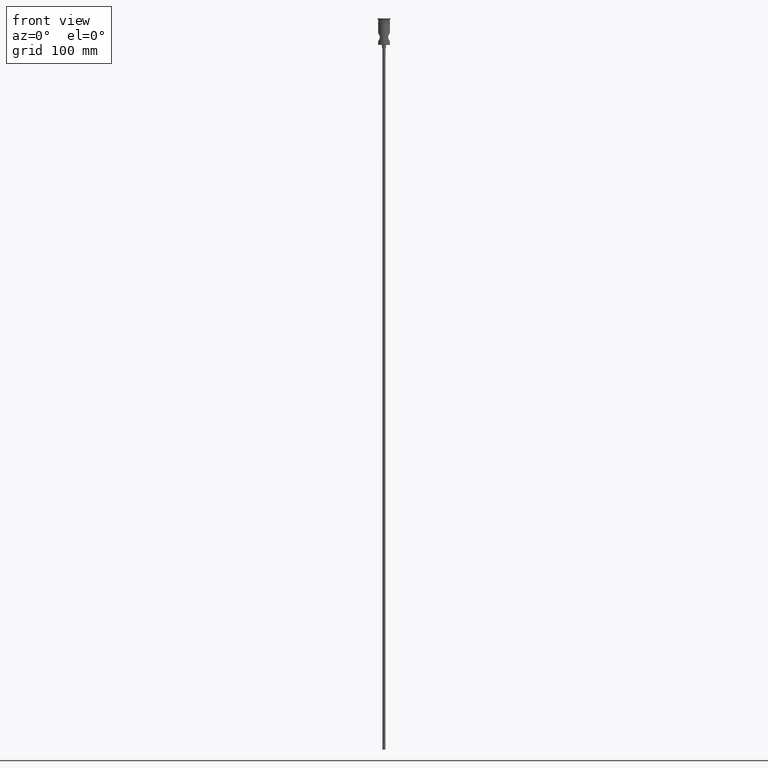
[diagram: clean part render]
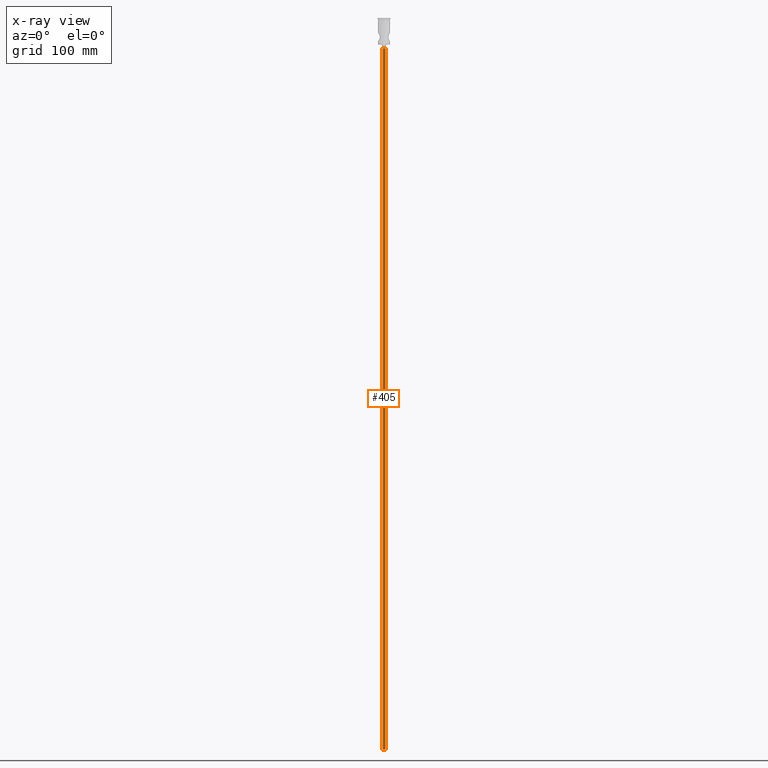
[diagram: x-ray — body ghosted, one internal face saturated and labeled with its STEP entity id]
A machine part, front view, then the same camera in x-ray: the body is ghosted and one INTERNAL B-rep face — a face not visible from any outside direction — is saturated and labeled: STEP entity #405.
In plain terms, the highlighted cylindrical surface (edge-blend (fillet) strip) has radius 1.25 mm, axis along (-0, -0, 1).
Its self-contained STEP definition (entity closure, byte-faithful):
#13 = ORIENTED_EDGE ( 'NONE', *, *, #460, .T. ) ;
#43 = CARTESIAN_POINT ( 'NONE',  ( 1.250000000000000000, 0.000000000000000000, -622.4999999999998863 ) ) ;
#85 = EDGE_CURVE ( 'NONE', #523, #1429, #1050, .T. ) ;
#268 = FACE_OUTER_BOUND ( 'NONE', #766, .T. ) ;
#280 = LINE ( 'NONE', #1276, #376 ) ;
#321 = DIRECTION ( 'NONE',  ( -1.000000000000000000, 0.000000000000000000, 0.000000000000000000 ) ) ;
#328 = CIRCLE ( 'NONE', #849, 1.250000000000000000 ) ;
#361 = CARTESIAN_POINT ( 'NONE',  ( -1.250000000000000000, 1.530808498934191571E-16, -25.50000000000000000 ) ) ;
#376 = VECTOR ( 'NONE', #1372, 1000.000000000000000 ) ;
#380 = CARTESIAN_POINT ( 'NONE',  ( 0.000000000000000000, 0.000000000000000000, -25.50000000000000000 ) ) ;
#390 = CYLINDRICAL_SURFACE ( 'NONE', #395, 1.250000000000000000 ) ;
#395 = AXIS2_PLACEMENT_3D ( 'NONE', #1176, #728, #702 ) ;
#405 = ADVANCED_FACE ( 'NONE', ( #268 ), #390, .T. ) ;
#460 = EDGE_CURVE ( 'NONE', #998, #1145, #280, .T. ) ;
#523 = VERTEX_POINT ( 'NONE', #526 ) ;
#526 = CARTESIAN_POINT ( 'NONE',  ( 1.250000000000000000, 0.000000000000000000, -622.4999999999998863 ) ) ;
#540 = CIRCLE ( 'NONE', #589, 1.250000000000000000 ) ;
#549 = CARTESIAN_POINT ( 'NONE',  ( 1.250000000000000000, 0.000000000000000000, -25.50000000000000000 ) ) ;
#584 = VECTOR ( 'NONE', #1091, 1000.000000000000000 ) ;
#589 = AXIS2_PLACEMENT_3D ( 'NONE', #1035, #1247, #321 ) ;
#694 = EDGE_CURVE ( 'NONE', #1145, #1429, #328, .T. ) ;
#702 = DIRECTION ( 'NONE',  ( 1.000000000000000000, 0.000000000000000000, 0.000000000000000000 ) ) ;
#728 = DIRECTION ( 'NONE',  ( -0.000000000000000000, -0.000000000000000000, 1.000000000000000000 ) ) ;
#766 = EDGE_LOOP ( 'NONE', ( #907, #13, #808, #1219 ) ) ;
#808 = ORIENTED_EDGE ( 'NONE', *, *, #694, .T. ) ;
#849 = AXIS2_PLACEMENT_3D ( 'NONE', #380, #1047, #1161 ) ;
#907 = ORIENTED_EDGE ( 'NONE', *, *, #1394, .F. ) ;
#998 = VERTEX_POINT ( 'NONE', #1081 ) ;
#1035 = CARTESIAN_POINT ( 'NONE',  ( 0.000000000000000000, 0.000000000000000000, -622.4999999999998863 ) ) ;
#1047 = DIRECTION ( 'NONE',  ( 0.000000000000000000, 0.000000000000000000, -1.000000000000000000 ) ) ;
#1050 = LINE ( 'NONE', #43, #584 ) ;
#1081 = CARTESIAN_POINT ( 'NONE',  ( -1.250000000000000000, 1.530808498934191571E-16, -622.4999999999998863 ) ) ;
#1091 = DIRECTION ( 'NONE',  ( -0.000000000000000000, -0.000000000000000000, 1.000000000000000000 ) ) ;
#1145 = VERTEX_POINT ( 'NONE', #361 ) ;
#1161 = DIRECTION ( 'NONE',  ( -1.000000000000000000, 0.000000000000000000, 0.000000000000000000 ) ) ;
#1176 = CARTESIAN_POINT ( 'NONE',  ( 0.000000000000000000, 0.000000000000000000, -622.4999999999998863 ) ) ;
#1219 = ORIENTED_EDGE ( 'NONE', *, *, #85, .F. ) ;
#1247 = DIRECTION ( 'NONE',  ( 0.000000000000000000, 0.000000000000000000, -1.000000000000000000 ) ) ;
#1276 = CARTESIAN_POINT ( 'NONE',  ( -1.250000000000000000, 1.530808498934191571E-16, -622.4999999999998863 ) ) ;
#1372 = DIRECTION ( 'NONE',  ( -0.000000000000000000, -0.000000000000000000, 1.000000000000000000 ) ) ;
#1394 = EDGE_CURVE ( 'NONE', #998, #523, #540, .T. ) ;
#1429 = VERTEX_POINT ( 'NONE', #549 ) ;